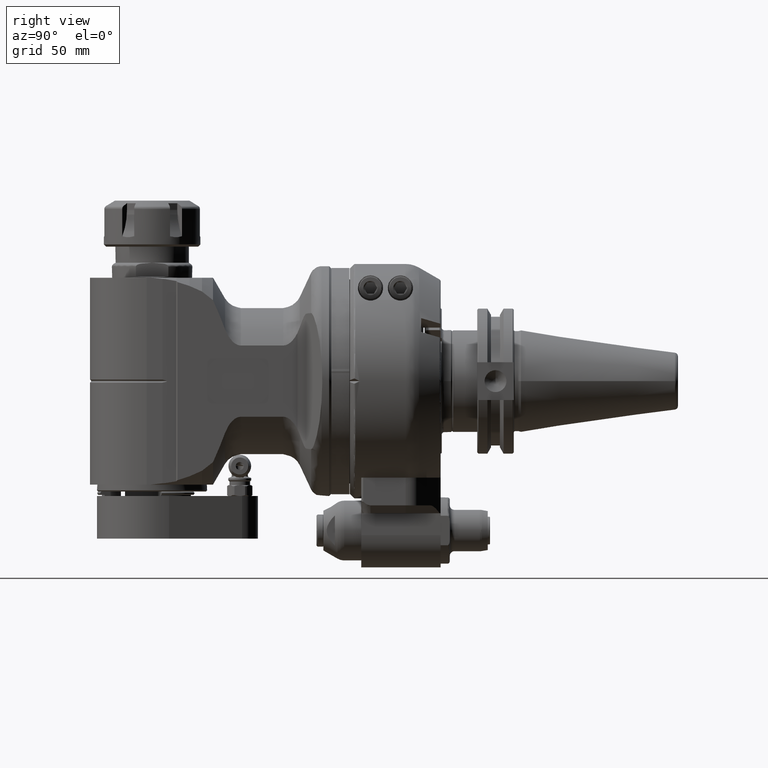
[diagram: clean part render]
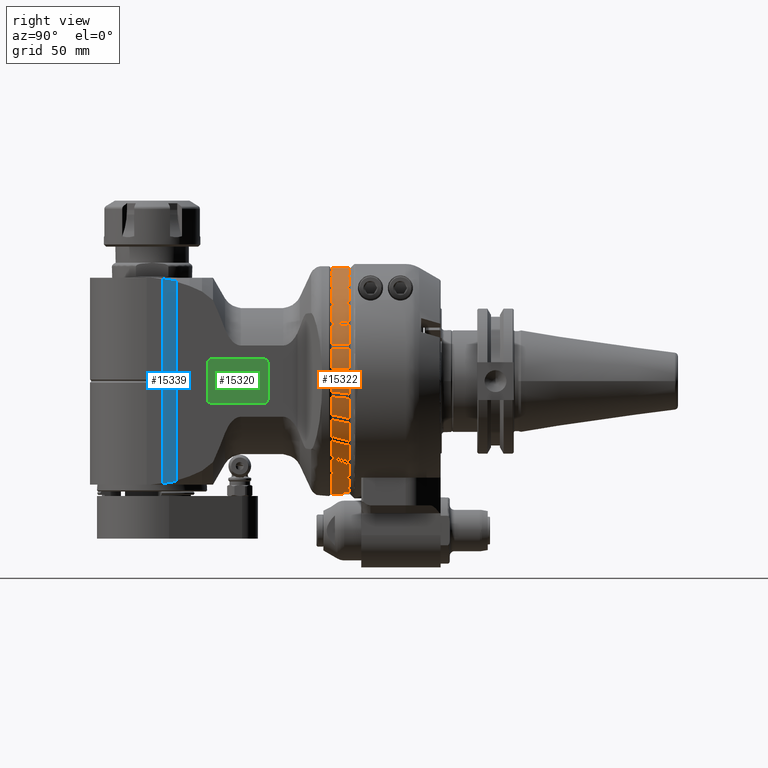
[diagram: same view with three faces highlighted in distinct colors, each labeled with its STEP entity id]
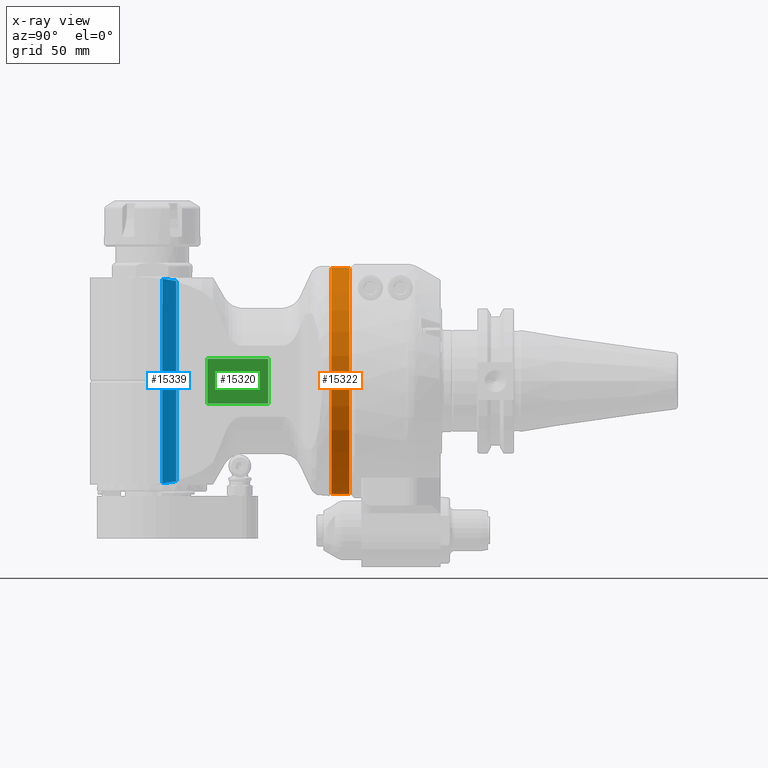
[diagram: x-ray of the same camera — body ghosted, the three highlighted faces saturated]
A machine part, right view with three faces highlighted in distinct colors.
The next image is the same camera in x-ray (body ghosted, the three faces saturated) — at least one of them is partly hidden behind the body in this view.
Their STEP definitions:

[orange] entity #15322 — the highlighted cylindrical surface (bore or boss wall) has radius 49.2 mm, axis along (0, -1, -0).
#716=CYLINDRICAL_SURFACE('',#16270,49.2);
#1106=CIRCLE('',#16268,49.2);
#1108=CIRCLE('',#16271,49.2);
#1924=FACE_OUTER_BOUND('',#2812,.T.);
#2812=EDGE_LOOP('',(#10204,#10205,#10206,#10207));
#3856=LINE('',#22649,#5015);
#5015=VECTOR('',#18027,49.2);
#6170=VERTEX_POINT('',#22643);
#6172=VERTEX_POINT('',#22648);
#7811=EDGE_CURVE('',#6170,#6170,#1106,.T.);
#7813=EDGE_CURVE('',#6170,#6172,#3856,.T.);
#7814=EDGE_CURVE('',#6172,#6172,#1108,.T.);
#10204=ORIENTED_EDGE('',*,*,#7811,.F.);
#10205=ORIENTED_EDGE('',*,*,#7813,.T.);
#10206=ORIENTED_EDGE('',*,*,#7814,.T.);
#10207=ORIENTED_EDGE('',*,*,#7813,.F.);
#15322=ADVANCED_FACE('',(#1924),#716,.T.);
#16268=AXIS2_PLACEMENT_3D('',#22644,#18021,#18022);
#16270=AXIS2_PLACEMENT_3D('',#22647,#18025,#18026);
#16271=AXIS2_PLACEMENT_3D('',#22650,#18028,#18029);
#18021=DIRECTION('center_axis',(1.,0.,0.));
#18022=DIRECTION('ref_axis',(0.,1.,0.));
#18025=DIRECTION('center_axis',(1.,0.,0.));
#18026=DIRECTION('ref_axis',(0.,1.,0.));
#18027=DIRECTION('',(-1.,0.,0.));
#18028=DIRECTION('center_axis',(1.,0.,0.));
#18029=DIRECTION('ref_axis',(0.,1.,0.));
#22643=CARTESIAN_POINT('',(12.,-49.2,0.));
#22644=CARTESIAN_POINT('Origin',(12.,0.,0.));
#22647=CARTESIAN_POINT('Origin',(-258.4439969787,0.,-4.267208868144E-14));
#22648=CARTESIAN_POINT('',(4.2,-49.2,0.));
#22649=CARTESIAN_POINT('',(-258.4439969787,-49.2,-4.8697350933245E-14));
#22650=CARTESIAN_POINT('Origin',(4.2,0.,-1.050747565992E-14));

[blue] entity #15339 — the highlighted planar face has unit normal (1, 0, -0).
#351=(
BOUNDED_CURVE()
B_SPLINE_CURVE(2,(#22946,#22947,#22948),.UNSPECIFIED.,.F.,.F.)
B_SPLINE_CURVE_WITH_KNOTS((3,3),(-0.608594453559954,-0.111988015346402),
 .UNSPECIFIED.)
CURVE()
GEOMETRIC_REPRESENTATION_ITEM()
RATIONAL_B_SPLINE_CURVE((1.00003148859109,1.00005608325273,1.00001957365593))
REPRESENTATION_ITEM('')
);
#352=(
BOUNDED_CURVE()
B_SPLINE_CURVE(2,(#22950,#22951,#22952),.UNSPECIFIED.,.F.,.F.)
B_SPLINE_CURVE_WITH_KNOTS((3,3),(0.593022338396774,0.701574539590971),
 .UNSPECIFIED.)
CURVE()
GEOMETRIC_REPRESENTATION_ITEM()
RATIONAL_B_SPLINE_CURVE((1.00001437346951,1.00001457221597,1.00001436211174))
REPRESENTATION_ITEM('')
);
#353=(
BOUNDED_CURVE()
B_SPLINE_CURVE(2,(#22999,#23000,#23001),.UNSPECIFIED.,.F.,.F.)
B_SPLINE_CURVE_WITH_KNOTS((3,3),(0.590006767761975,0.698558968945557),
 .UNSPECIFIED.)
CURVE()
GEOMETRIC_REPRESENTATION_ITEM()
RATIONAL_B_SPLINE_CURVE((1.00001436214455,1.0000145722493,1.00001437350241))
REPRESENTATION_ITEM('')
);
#354=(
BOUNDED_CURVE()
B_SPLINE_CURVE(2,(#23002,#23003,#23004),.UNSPECIFIED.,.F.,.F.)
B_SPLINE_CURVE_WITH_KNOTS((3,3),(-0.705429496781977,-0.208823058568424),
 .UNSPECIFIED.)
CURVE()
GEOMETRIC_REPRESENTATION_ITEM()
RATIONAL_B_SPLINE_CURVE((1.00001957365594,1.00005608325273,1.00003148859109))
REPRESENTATION_ITEM('')
);
#507=B_SPLINE_CURVE_WITH_KNOTS('',3,(#22956,#22957,#22958,#22959,#22960,
#22961,#22962,#22963,#22964,#22965),.UNSPECIFIED.,.F.,.F.,(4,3,3,4),(0.,
0.3333333333333,0.6666666666667,1.),.UNSPECIFIED.);
#508=B_SPLINE_CURVE_WITH_KNOTS('',3,(#22967,#22968,#22969,#22970,#22971,
#22972,#22973,#22974,#22975,#22976,#22977,#22978,#22979,#22980,#22981,#22982,
#22983,#22984),.UNSPECIFIED.,.F.,.F.,(4,2,2,2,2,2,2,2,4),(-1.19105853373548,
-1.17004342643613,-1.15118076479886,-1.145947321921,-1.14167988908612,-1.13741245625123,
-1.13217901337337,-1.1133163517361,-1.09230124444175),.UNSPECIFIED.);
#509=B_SPLINE_CURVE_WITH_KNOTS('',3,(#22986,#22987,#22988,#22989,#22990,
#22991,#22992,#22993,#22994,#22995),.UNSPECIFIED.,.F.,.F.,(4,3,3,4),(0.,
0.3333333333333,0.6666666666667,1.),.UNSPECIFIED.);
#1941=FACE_OUTER_BOUND('',#2833,.T.);
#2833=EDGE_LOOP('',(#10310,#10311,#10312,#10313,#10314,#10315,#10316,#10317,
#10318,#10319));
#3884=LINE('',#22933,#5043);
#3885=LINE('',#22954,#5044);
#3886=LINE('',#22997,#5045);
#5043=VECTOR('',#18127,87.11621977575);
#5044=VECTOR('',#18132,43.8047902956104);
#5045=VECTOR('',#18133,43.8047903018304);
#6229=VERTEX_POINT('',#22931);
#6230=VERTEX_POINT('',#22932);
#6232=VERTEX_POINT('',#22945);
#6233=VERTEX_POINT('',#22949);
#6234=VERTEX_POINT('',#22953);
#6235=VERTEX_POINT('',#22955);
#6236=VERTEX_POINT('',#22966);
#6237=VERTEX_POINT('',#22985);
#6238=VERTEX_POINT('',#22996);
#6239=VERTEX_POINT('',#22998);
#7884=EDGE_CURVE('',#6229,#6230,#3884,.T.);
#7888=EDGE_CURVE('',#6232,#6230,#351,.T.);
#7889=EDGE_CURVE('',#6232,#6233,#352,.T.);
#7890=EDGE_CURVE('',#6234,#6233,#3885,.T.);
#7891=EDGE_CURVE('',#6235,#6234,#507,.T.);
#7892=EDGE_CURVE('',#6236,#6235,#508,.F.);
#7893=EDGE_CURVE('',#6237,#6236,#509,.T.);
#7894=EDGE_CURVE('',#6238,#6237,#3886,.T.);
#7895=EDGE_CURVE('',#6238,#6239,#353,.T.);
#7896=EDGE_CURVE('',#6229,#6239,#354,.T.);
#10310=ORIENTED_EDGE('',*,*,#7884,.T.);
#10311=ORIENTED_EDGE('',*,*,#7888,.F.);
#10312=ORIENTED_EDGE('',*,*,#7889,.T.);
#10313=ORIENTED_EDGE('',*,*,#7890,.F.);
#10314=ORIENTED_EDGE('',*,*,#7891,.F.);
#10315=ORIENTED_EDGE('',*,*,#7892,.F.);
#10316=ORIENTED_EDGE('',*,*,#7893,.F.);
#10317=ORIENTED_EDGE('',*,*,#7894,.F.);
#10318=ORIENTED_EDGE('',*,*,#7895,.T.);
#10319=ORIENTED_EDGE('',*,*,#7896,.F.);
#14948=PLANE('',#16308);
#15339=ADVANCED_FACE('',(#1941),#14948,.T.);
#16308=AXIS2_PLACEMENT_3D('',#22944,#18130,#18131);
#18127=DIRECTION('',(0.,-1.,0.));
#18130=DIRECTION('center_axis',(0.,0.,1.));
#18131=DIRECTION('ref_axis',(1.,0.,0.));
#18132=DIRECTION('',(1.32764519473999E-7,-0.999999999999991,2.87918339461897E-9));
#18133=DIRECTION('',(-1.33097299006099E-7,-0.999999999999991,-2.88630361638497E-9));
#22931=CARTESIAN_POINT('',(79.49,43.55810988787,27.5));
#22932=CARTESIAN_POINT('',(79.49,-43.55810988787,27.5));
#22933=CARTESIAN_POINT('',(79.49,43.55810988787,27.5));
#22944=CARTESIAN_POINT('Origin',(58.74015767835,0.8858735483008,27.5));
#22945=CARTESIAN_POINT('',(84.38034694252,-44.36879534087,27.5));
#22946=CARTESIAN_POINT('Ctrl Pts',(84.3803469425201,-44.3687953408692,27.5));
#22947=CARTESIAN_POINT('Ctrl Pts',(81.9126289889229,-43.9607664498081,27.5));
#22948=CARTESIAN_POINT('Ctrl Pts',(79.4899999999994,-43.5581098878739,27.5));
#22949=CARTESIAN_POINT('',(85.46381930714,-44.43558601805,27.5));
#22950=CARTESIAN_POINT('Ctrl Pts',(84.3803469425199,-44.368795340872,27.5));
#22951=CARTESIAN_POINT('Ctrl Pts',(84.9216756795463,-44.4021725258606,27.5));
#22952=CARTESIAN_POINT('Ctrl Pts',(85.4638193071398,-44.4355860180525,27.5));
#22953=CARTESIAN_POINT('',(85.4638134742534,-0.63079676584555,27.5000001290638));
#22954=CARTESIAN_POINT('',(85.46381349142,-0.6307957224406,27.49999987388));
#22955=CARTESIAN_POINT('',(83.9104408465,-0.2828427124861,27.5));
#22956=CARTESIAN_POINT('Ctrl Pts',(83.9104408465,-0.2828427124861,27.5));
#22957=CARTESIAN_POINT('Ctrl Pts',(84.08420677395,-0.3321183897137,27.5));
#22958=CARTESIAN_POINT('Ctrl Pts',(84.25757021101,-0.377919337942193,27.5));
#22959=CARTESIAN_POINT('Ctrl Pts',(84.4306851225549,-0.420203916558988,
27.5));
#22960=CARTESIAN_POINT('Ctrl Pts',(84.6038000341,-0.462488495175796,27.5));
#22961=CARTESIAN_POINT('Ctrl Pts',(84.77666642013,-0.501256704180904,27.5));
#22962=CARTESIAN_POINT('Ctrl Pts',(84.9488959661976,-0.53637411392936,27.5));
#22963=CARTESIAN_POINT('Ctrl Pts',(85.121125512265,-0.571491523677805,27.5));
#22964=CARTESIAN_POINT('Ctrl Pts',(85.29271821837,-0.6029581341696,27.5));
#22965=CARTESIAN_POINT('Ctrl Pts',(85.46381349142,-0.6307957224406,27.5));
#22966=CARTESIAN_POINT('',(83.91044084645,0.2828427124746,27.5));
#22967=CARTESIAN_POINT('Ctrl Pts',(83.9104408464983,-0.282842712491837,
27.5));
#22968=CARTESIAN_POINT('Ctrl Pts',(83.8413902386131,-0.263261684634919,
27.5));
#22969=CARTESIAN_POINT('Ctrl Pts',(83.774541845351,-0.240117222930763,27.5));
#22970=CARTESIAN_POINT('Ctrl Pts',(83.6549369218228,-0.182117600377863,
27.5));
#22971=CARTESIAN_POINT('Ctrl Pts',(83.5906903120551,-0.14255533049815,27.5));
#22972=CARTESIAN_POINT('Ctrl Pts',(83.5417258196788,-0.0788855821805887,
27.5));
#22973=CARTESIAN_POINT('Ctrl Pts',(83.5311479100739,-0.0608209587944465,
27.5));
#22974=CARTESIAN_POINT('Ctrl Pts',(83.5204682585744,-0.0310064035765991,
27.5));
#22975=CARTESIAN_POINT('Ctrl Pts',(83.5173453260122,-0.0142247761162909,
27.5));
#22976=CARTESIAN_POINT('Ctrl Pts',(83.5173453260122,0.0142247761162909,
27.5));
#22977=CARTESIAN_POINT('Ctrl Pts',(83.5204682585744,0.0310064035765991,
27.5));
#22978=CARTESIAN_POINT('Ctrl Pts',(83.5311479100739,0.0608209587944465,
27.5));
#22979=CARTESIAN_POINT('Ctrl Pts',(83.5417258196788,0.0788855821805887,
27.5));
#22980=CARTESIAN_POINT('Ctrl Pts',(83.5906903120551,0.14255533049815,27.5));
#22981=CARTESIAN_POINT('Ctrl Pts',(83.6549369218228,0.182117600377863,27.5));
#22982=CARTESIAN_POINT('Ctrl Pts',(83.774541845336,0.240117222923484,27.5));
#22983=CARTESIAN_POINT('Ctrl Pts',(83.8413902385814,0.263261684623741,27.5));
#22984=CARTESIAN_POINT('Ctrl Pts',(83.9104408464491,0.282842712477874,27.5));
#22985=CARTESIAN_POINT('',(85.4638134596409,0.630796762235867,27.5000001293878));
#22986=CARTESIAN_POINT('Ctrl Pts',(85.46381347685,0.6307957162209,27.5));
#22987=CARTESIAN_POINT('Ctrl Pts',(85.2927268235,0.6029595297916,27.5));
#22988=CARTESIAN_POINT('Ctrl Pts',(85.12113981623,0.571494205765055,27.5));
#22989=CARTESIAN_POINT('Ctrl Pts',(84.9489130893617,0.536377604696968,27.5));
#22990=CARTESIAN_POINT('Ctrl Pts',(84.7766863624934,0.501261003628871,27.5));
#22991=CARTESIAN_POINT('Ctrl Pts',(84.6038199160267,0.462493125519229,27.5));
#22992=CARTESIAN_POINT('Ctrl Pts',(84.4307021247933,0.420208069221455,27.5));
#22993=CARTESIAN_POINT('Ctrl Pts',(84.25758433356,0.377923012923693,27.5));
#22994=CARTESIAN_POINT('Ctrl Pts',(84.08421519756,0.3321207784378,27.5));
#22995=CARTESIAN_POINT('Ctrl Pts',(83.9104408465,0.2828427124861,27.5));
#22996=CARTESIAN_POINT('',(85.46381930715,44.43558601805,27.5));
#22997=CARTESIAN_POINT('',(85.46381930715,44.43558601805,27.5));
#22998=CARTESIAN_POINT('',(84.38034694252,44.36879534087,27.5));
#22999=CARTESIAN_POINT('Ctrl Pts',(85.4638193071498,44.4355860180531,27.5));
#23000=CARTESIAN_POINT('Ctrl Pts',(84.9216756794396,44.4021725258541,27.5));
#23001=CARTESIAN_POINT('Ctrl Pts',(84.3803469425199,44.3687953408721,27.5));
#23002=CARTESIAN_POINT('Ctrl Pts',(79.4899999999994,43.5581098878739,27.5));
#23003=CARTESIAN_POINT('Ctrl Pts',(81.9126289889229,43.9607664498081,27.5));
#23004=CARTESIAN_POINT('Ctrl Pts',(84.3803469425201,44.3687953408692,27.5));

[green] entity #15320 — the highlighted planar face has unit normal (1, 0, -0).
#1922=FACE_OUTER_BOUND('',#2809,.T.);
#2809=EDGE_LOOP('',(#10198,#10199,#10200,#10201));
#3849=LINE('',#22629,#5008);
#3851=LINE('',#22633,#5010);
#3853=LINE('',#22637,#5012);
#3855=LINE('',#22640,#5014);
#5008=VECTOR('',#18004,19.5);
#5010=VECTOR('',#18008,26.5);
#5012=VECTOR('',#18012,19.5);
#5014=VECTOR('',#18016,26.5);
#6166=VERTEX_POINT('',#22626);
#6167=VERTEX_POINT('',#22628);
#6168=VERTEX_POINT('',#22632);
#6169=VERTEX_POINT('',#22636);
#7804=EDGE_CURVE('',#6167,#6166,#3849,.T.);
#7806=EDGE_CURVE('',#6168,#6167,#3851,.T.);
#7808=EDGE_CURVE('',#6169,#6168,#3853,.T.);
#7810=EDGE_CURVE('',#6166,#6169,#3855,.T.);
#10198=ORIENTED_EDGE('',*,*,#7804,.T.);
#10199=ORIENTED_EDGE('',*,*,#7810,.T.);
#10200=ORIENTED_EDGE('',*,*,#7808,.T.);
#10201=ORIENTED_EDGE('',*,*,#7806,.T.);
#14941=PLANE('',#16266);
#15320=ADVANCED_FACE('',(#1922),#14941,.T.);
#16266=AXIS2_PLACEMENT_3D('',#22641,#18017,#18018);
#18004=DIRECTION('',(0.,-1.,0.));
#18008=DIRECTION('',(-1.,0.,0.));
#18012=DIRECTION('',(0.,1.,0.));
#18016=DIRECTION('',(1.,0.,0.));
#18017=DIRECTION('center_axis',(0.,0.,1.));
#18018=DIRECTION('ref_axis',(1.,0.,0.));
#22626=CARTESIAN_POINT('',(39.5,-9.75,27.7));
#22628=CARTESIAN_POINT('',(39.5,9.75,27.7));
#22629=CARTESIAN_POINT('',(39.5,9.75,27.7));
#22632=CARTESIAN_POINT('',(66.,9.75,27.7));
#22633=CARTESIAN_POINT('',(66.,9.75,27.7));
#22636=CARTESIAN_POINT('',(66.,-9.75,27.7));
#22637=CARTESIAN_POINT('',(66.,-9.75,27.7));
#22640=CARTESIAN_POINT('',(39.5,-9.75,27.7));
#22641=CARTESIAN_POINT('Origin',(0.,0.,27.7));